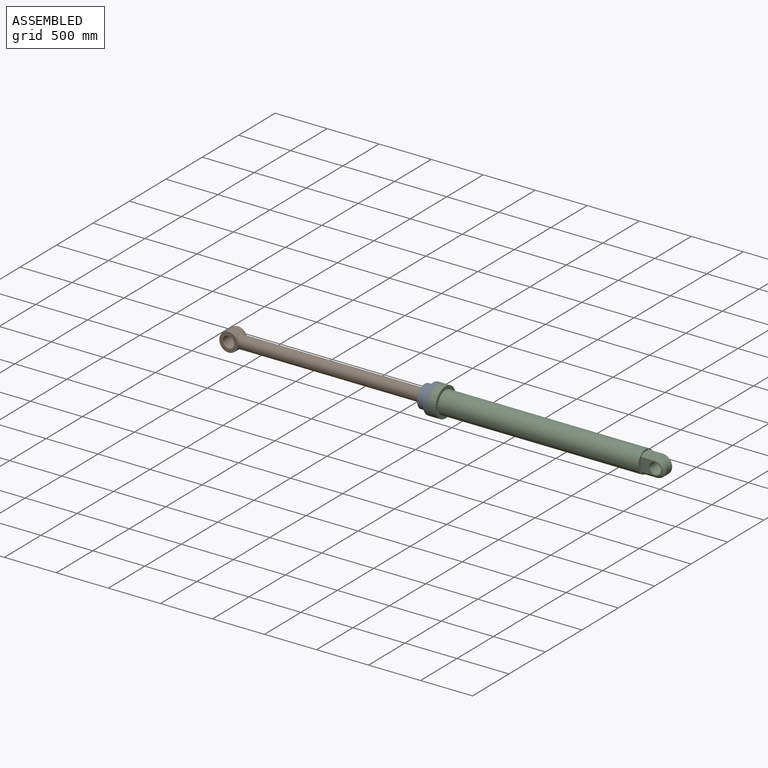
[diagram: assembled view]
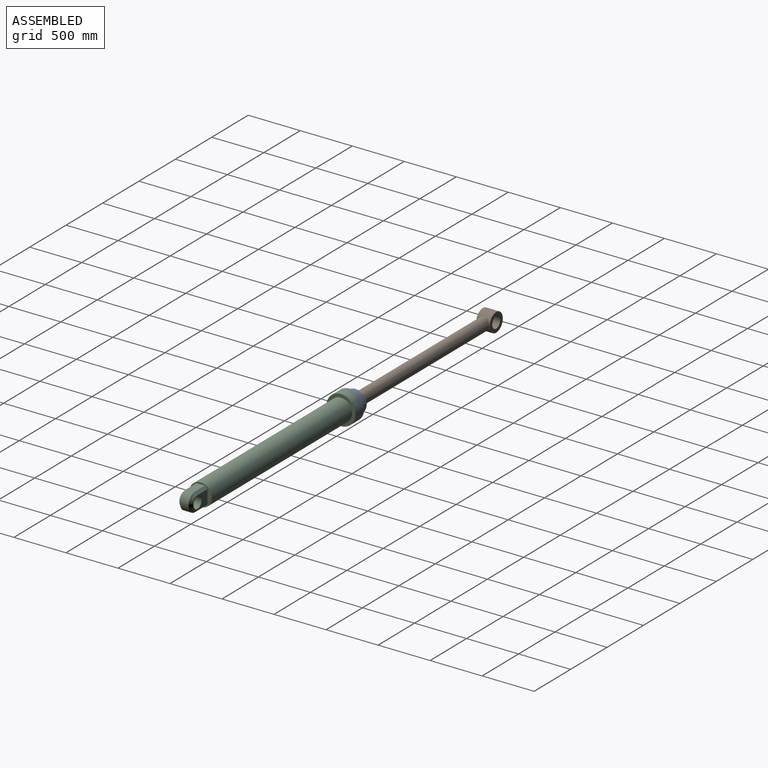
[diagram: assembled view, second angle]
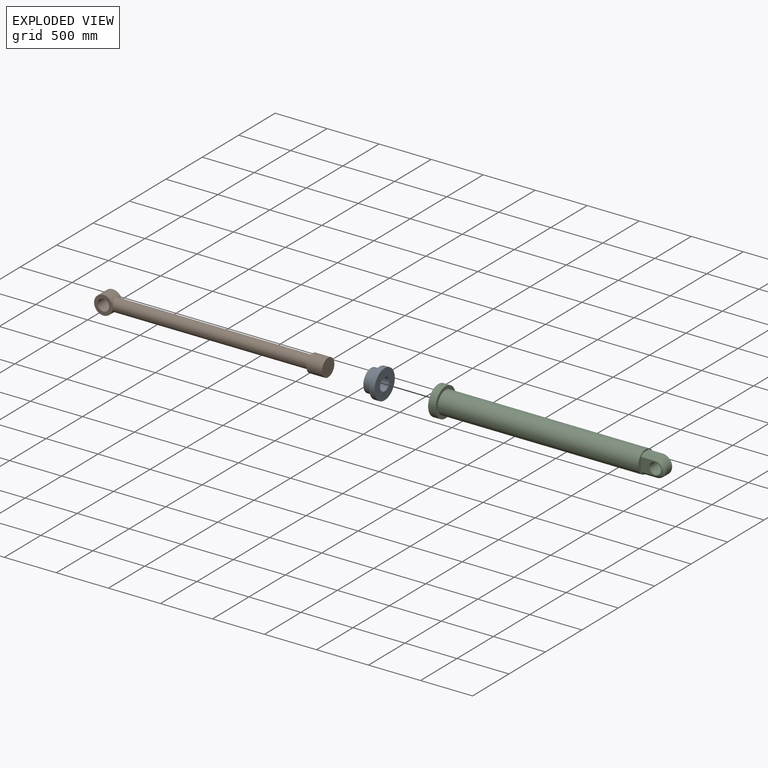
[diagram: exploded view]
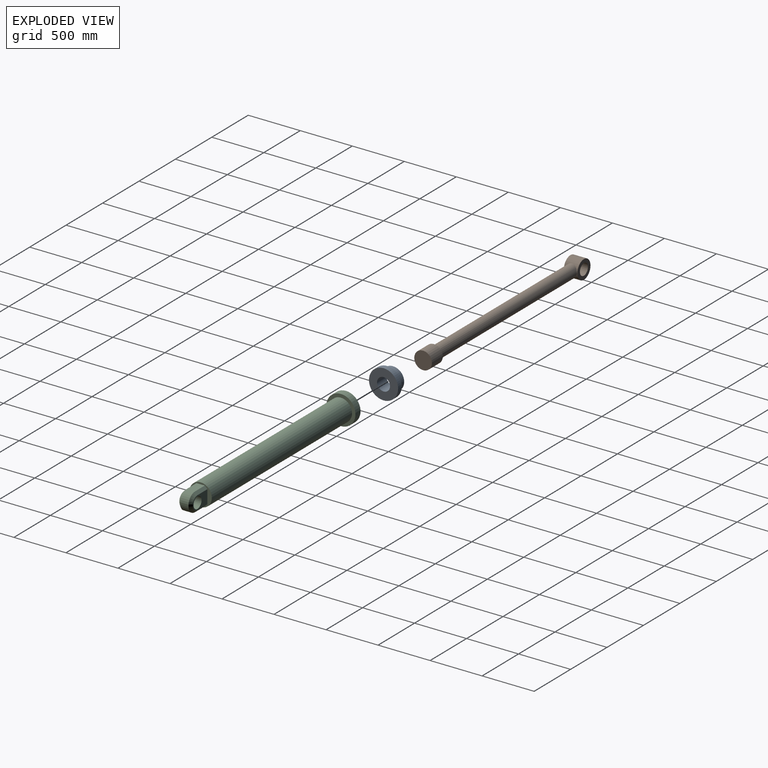
[diagram: exploded view, second angle]
ASSEMBLY  parts=3 mates=2
PART A: 6 faces, bbox 130x280x280 mm
  f0: plane 280x280mm, normal (1,0,0), area 49303.4mm2, adj f1,f5
  f1: cylinder r=140mm len=280mm, axis (-1,0,0), area 43982.3mm2, adj f0,f2
  f2: plane 280x280mm, normal (-1,0,0), area 25270.2mm2, adj f1,f3
  f3: cylinder r=107.5mm len=215mm, axis (-1,0,0), area 54035.4mm2, adj f2,f4
  f4: plane 215x215mm, normal (-1,0,0), area 24033.2mm2, adj f3,f5
  f5: cylinder r=62.5mm len=130mm, axis (-1,0,0), area 51050.9mm2, adj f0,f4
PART B: 8 faces, bbox 2205x170x180 mm
  f0: cylinder r=90mm len=180mm, axis (0,1,0), area 61437.1mm2, adj f2,f3,f4
  f1: cylinder r=55mm len=130mm, axis (0,1,0), area 44924.8mm2, adj f2,f3
  f2: plane 180x180mm, normal (0,-1,0), area 15943.6mm2, adj f0,f1
  f3: plane 180x180mm, normal (0,1,0), area 15943.6mm2, adj f0,f1
  f4: cylinder r=60mm len=1897.92mm, axis (-1,0,0), area 711021.4mm2, adj f0,f7
  f5: plane 170x170mm, normal (1,0,0), area 22698mm2, adj f6
  f6: cylinder r=85mm len=170mm, axis (-1,0,0), area 80110.6mm2, adj f5,f7
  f7: plane 170x170mm, normal (-1,0,0), area 11388.3mm2, adj f4,f6
PART C: 19 faces, bbox 2220x280x280 mm
  f0: cylinder r=90mm len=180mm, axis (0,1,0), area 22619.5mm2, adj f1,f3,f14,f17
  f1: plane 135x80mm, normal (0,0,1), area 10800mm2, adj f0,f6,f13,f16
  f2: cylinder r=55mm len=130mm, axis (0,1,0), area 44924.8mm2, adj f4,f5
  f3: plane 135x80mm, normal (0,0,-1), area 10800mm2, adj f0,f6,f15,f18
  f4: plane 200x130mm, normal (0,-1,0), area 14683.3mm2, adj f2,f6,f16,f17,f18
  f5: plane 200x130mm, normal (0,1,0), area 14683.3mm2, adj f2,f6,f13,f14,f15
  f6: plane 215x215mm, normal (1,0,0), area 14155mm2, adj f1,f3,f4,f5,f7,f13,f15,f16
  f7: cylinder r=107.5mm len=1925mm, axis (-1,0,0), area 1300226.7mm2, adj f6,f8
  f8: plane 280x280mm, normal (1,0,0), area 25270.2mm2, adj f7,f9
  f9: cylinder r=140mm len=280mm, axis (-1,0,0), area 61575.2mm2, adj f8,f10
  f10: plane 280x280mm, normal (-1,0,0), area 37522.4mm2, adj f9,f11
  f11: cylinder r=87.5mm len=1845mm, axis (-1,0,0), area 1014341.7mm2, adj f10,f12
  f12: plane 175x175mm, normal (-1,0,0), area 24052.8mm2, adj f11
  f13: plane 135x25mm, normal (0,0.71,0.71), area 4773mm2, adj f1,f5,f6,f14
  f14: cone r=90mm half-angle=45deg, axis (0,-1,0), area 8608.1mm2, adj f0,f5,f13,f15
  f15: plane 135x25mm, normal (0,0.71,-0.71), area 4773mm2, adj f3,f5,f6,f14
  f16: plane 135x25mm, normal (0,-0.71,0.71), area 4773mm2, adj f1,f4,f6,f17
  f17: cone r=65mm half-angle=45deg, axis (0,1,0), area 8608.1mm2, adj f0,f4,f16,f18
  f18: plane 135x25mm, normal (0,-0.71,-0.71), area 4773mm2, adj f3,f4,f6,f17
PLACE A at identity
PLACE B t=(-1700,0,0)mm
PLACE C at identity fixed
MATE fastened A.f1 <-> C.f7  axis (-1,0,0) through (-2130,0,0)mm
MATE slider B.f4 <-> C.f7  axis (1,0,0) through (-1985,0,0)mm
